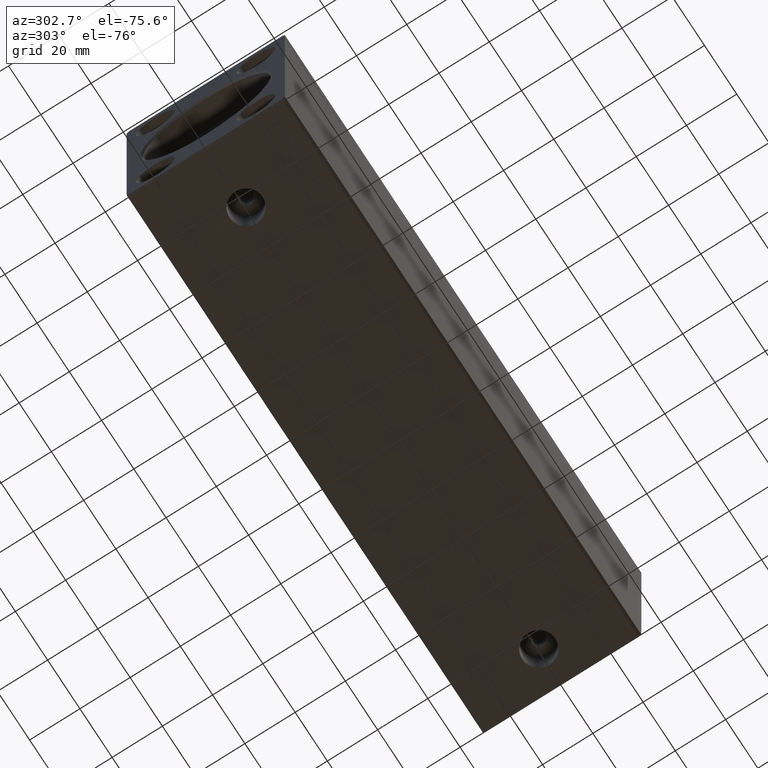
[diagram: clean part render]
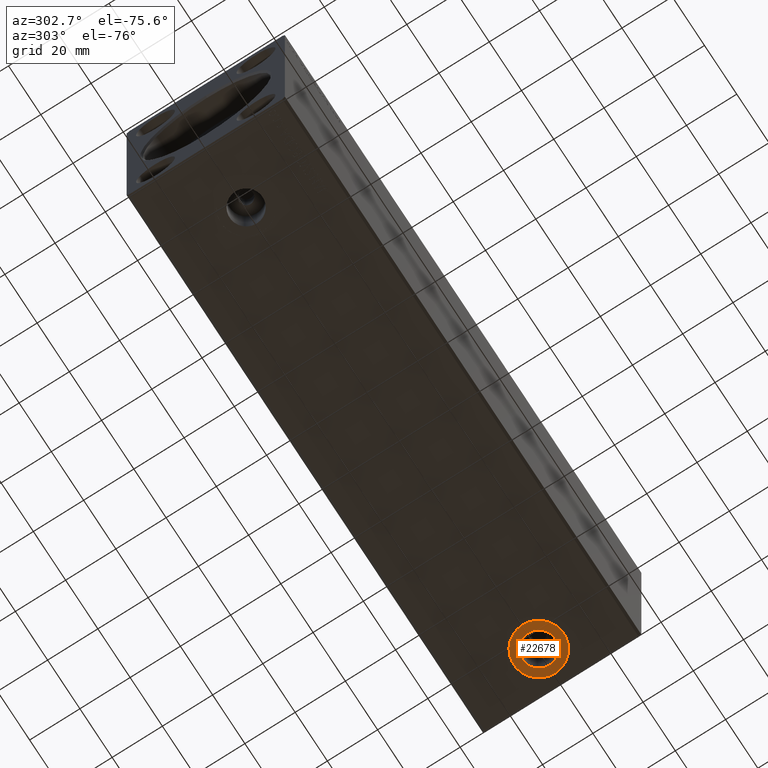
[diagram: same view with one face highlighted and labeled with its STEP entity id]
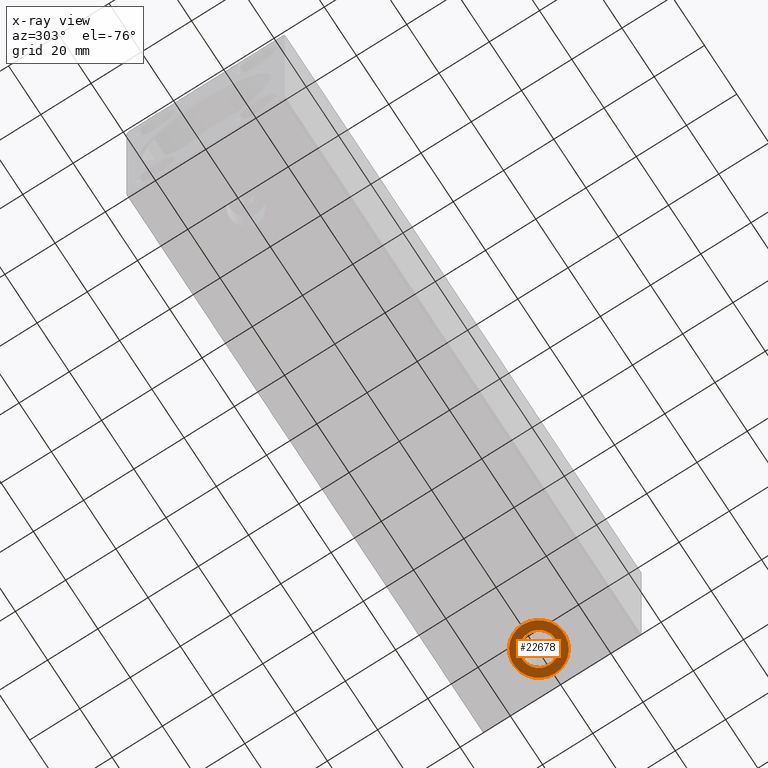
[diagram: x-ray of the same camera — body ghosted, the highlighted face saturated]
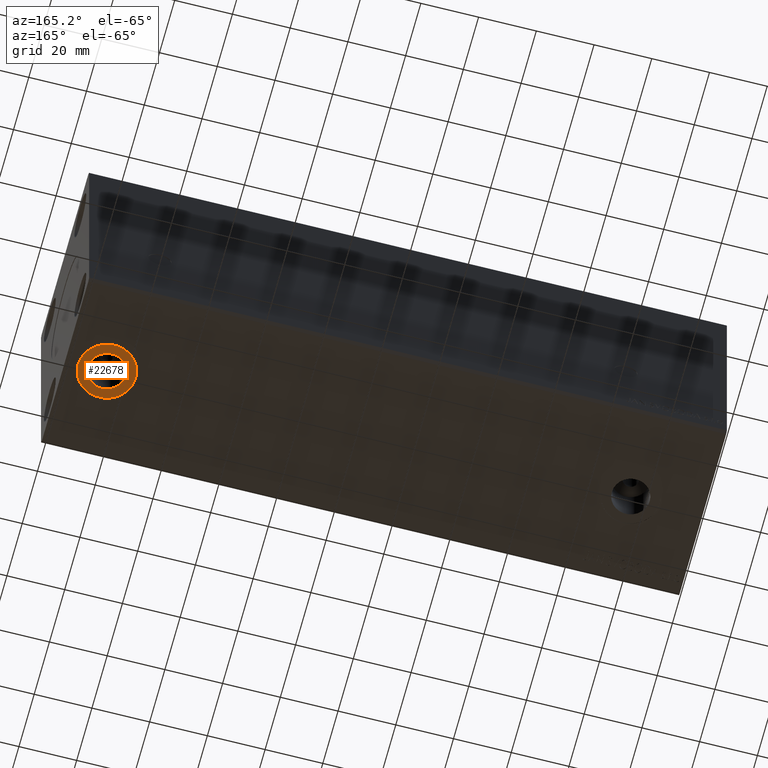
[diagram: same view with one face highlighted and labeled with its STEP entity id]
A machine part, auxiliary view. The second image highlights one B-rep face of the part: STEP entity #22678.
The next image is the same camera in x-ray: the body ghosted, the highlighted face saturated — about 0% of this face is hidden behind the body in this view.
A second angle (auxiliary view) of the same face is appended — the face is thin or edge-on in the first view.
In plain terms, the highlighted planar face has unit normal (0, 0, -1).
Its self-contained STEP definition (entity closure, byte-faithful):
#1203 = DIRECTION ( 'NONE',  ( -1.000000000000000000, 0.000000000000000000, 0.000000000000000000 ) ) ;
#2815 = EDGE_LOOP ( 'NONE', ( #19846, #32920 ) ) ;
#4800 = AXIS2_PLACEMENT_3D ( 'NONE', #33848, #27199, #1203 ) ;
#5236 = AXIS2_PLACEMENT_3D ( 'NONE', #26333, #19895, #32978 ) ;
#6978 = DIRECTION ( 'NONE',  ( -1.000000000000000000, 0.000000000000000000, 0.000000000000000000 ) ) ;
#7317 = CARTESIAN_POINT ( 'NONE',  ( 213.0799999999999557, -2.298335815756693676E-14, -42.40000000000000568 ) ) ;
#8591 = CARTESIAN_POINT ( 'NONE',  ( 199.9199999999999591, -2.378917575140590211E-14, -42.40000000000000568 ) ) ;
#8899 = DIRECTION ( 'NONE',  ( 0.000000000000000000, 0.000000000000000000, -1.000000000000000000 ) ) ;
#10251 = AXIS2_PLACEMENT_3D ( 'NONE', #33391, #13419, #6978 ) ;
#11641 = CIRCLE ( 'NONE', #10251, 6.580000000000002736 ) ;
#11927 = CARTESIAN_POINT ( 'NONE',  ( 206.4999999999999716, -2.378917575140590211E-14, -42.40000000000000568 ) ) ;
#11961 = VERTEX_POINT ( 'NONE', #32607 ) ;
#13419 = DIRECTION ( 'NONE',  ( 0.000000000000000000, 0.000000000000000000, -1.000000000000000000 ) ) ;
#13709 = CIRCLE ( 'NONE', #4800, 10.00000000000000888 ) ;
#15027 = ORIENTED_EDGE ( 'NONE', *, *, #41228, .T. ) ;
#15549 = CARTESIAN_POINT ( 'NONE',  ( 206.4999999999999716, -2.378917575140590211E-14, -42.40000000000000568 ) ) ;
#17368 = VERTEX_POINT ( 'NONE', #7317 ) ;
#17850 = EDGE_CURVE ( 'NONE', #17368, #34582, #26498, .T. ) ;
#18374 = PLANE ( 'NONE',  #42379 ) ;
#18544 = CIRCLE ( 'NONE', #30234, 10.00000000000000888 ) ;
#18684 = EDGE_LOOP ( 'NONE', ( #15027, #34800 ) ) ;
#19846 = ORIENTED_EDGE ( 'NONE', *, *, #37936, .F. ) ;
#19895 = DIRECTION ( 'NONE',  ( 0.000000000000000000, 0.000000000000000000, -1.000000000000000000 ) ) ;
#22678 = ADVANCED_FACE ( 'NONE', ( #25012, #25635 ), #18374, .T. ) ;
#25012 = FACE_BOUND ( 'NONE', #2815, .T. ) ;
#25635 = FACE_OUTER_BOUND ( 'NONE', #18684, .T. ) ;
#26333 = CARTESIAN_POINT ( 'NONE',  ( 206.4999999999999716, -2.378917575140590211E-14, -42.40000000000000568 ) ) ;
#26498 = CIRCLE ( 'NONE', #5236, 6.580000000000002736 ) ;
#27199 = DIRECTION ( 'NONE',  ( 0.000000000000000000, 0.000000000000000000, -1.000000000000000000 ) ) ;
#28459 = DIRECTION ( 'NONE',  ( 0.000000000000000000, 0.000000000000000000, -1.000000000000000000 ) ) ;
#30234 = AXIS2_PLACEMENT_3D ( 'NONE', #11927, #28459, #41564 ) ;
#30981 = CARTESIAN_POINT ( 'NONE',  ( 196.4999999999999432, -2.378917575140590211E-14, -42.40000000000000568 ) ) ;
#31446 = DIRECTION ( 'NONE',  ( -1.000000000000000000, 0.000000000000000000, -0.000000000000000000 ) ) ;
#32552 = VERTEX_POINT ( 'NONE', #30981 ) ;
#32607 = CARTESIAN_POINT ( 'NONE',  ( 216.4999999999999716, -2.256452895225854748E-14, -42.40000000000000568 ) ) ;
#32920 = ORIENTED_EDGE ( 'NONE', *, *, #17850, .F. ) ;
#32978 = DIRECTION ( 'NONE',  ( -1.000000000000000000, 0.000000000000000000, 0.000000000000000000 ) ) ;
#33339 = EDGE_CURVE ( 'NONE', #11961, #32552, #13709, .T. ) ;
#33391 = CARTESIAN_POINT ( 'NONE',  ( 206.4999999999999716, -2.378917575140590211E-14, -42.40000000000000568 ) ) ;
#33848 = CARTESIAN_POINT ( 'NONE',  ( 206.4999999999999716, -2.378917575140590211E-14, -42.40000000000000568 ) ) ;
#34582 = VERTEX_POINT ( 'NONE', #8591 ) ;
#34800 = ORIENTED_EDGE ( 'NONE', *, *, #33339, .T. ) ;
#37936 = EDGE_CURVE ( 'NONE', #34582, #17368, #11641, .T. ) ;
#41228 = EDGE_CURVE ( 'NONE', #32552, #11961, #18544, .T. ) ;
#41564 = DIRECTION ( 'NONE',  ( -1.000000000000000000, 0.000000000000000000, 0.000000000000000000 ) ) ;
#42379 = AXIS2_PLACEMENT_3D ( 'NONE', #15549, #8899, #31446 ) ;